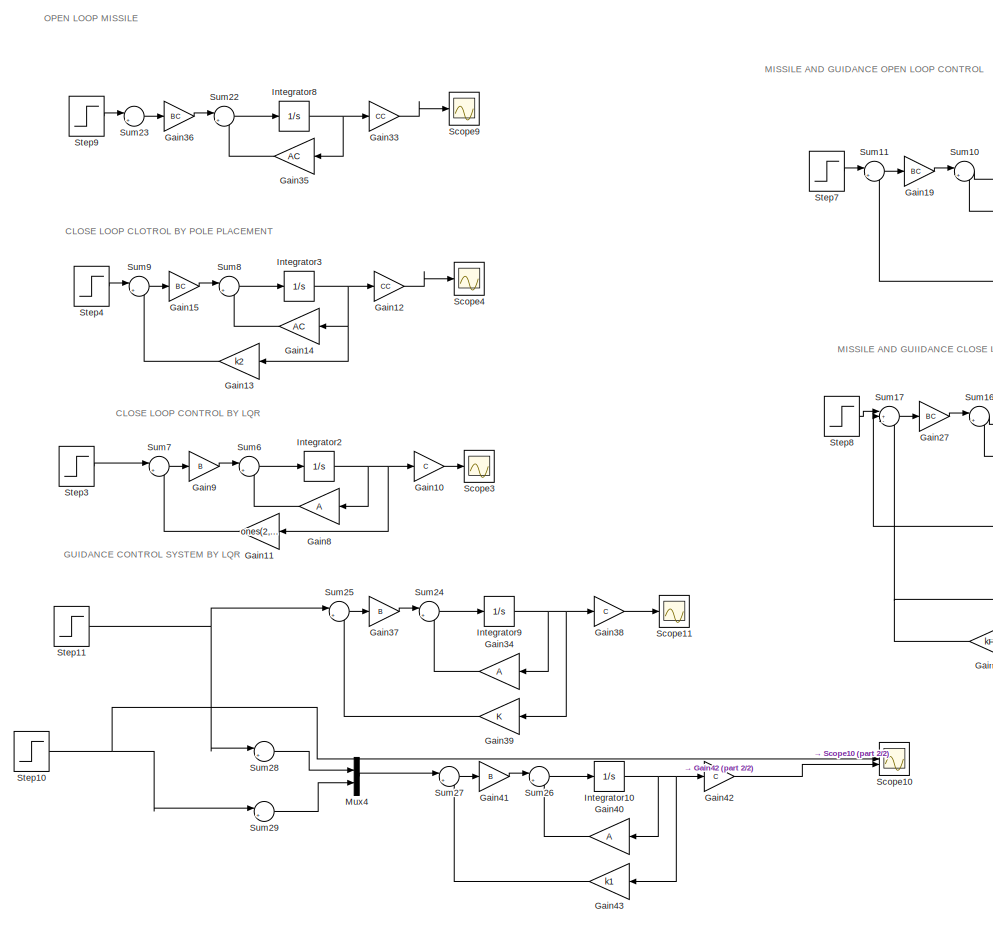
[diagram: root canvas - part 1/2, left side, full height]
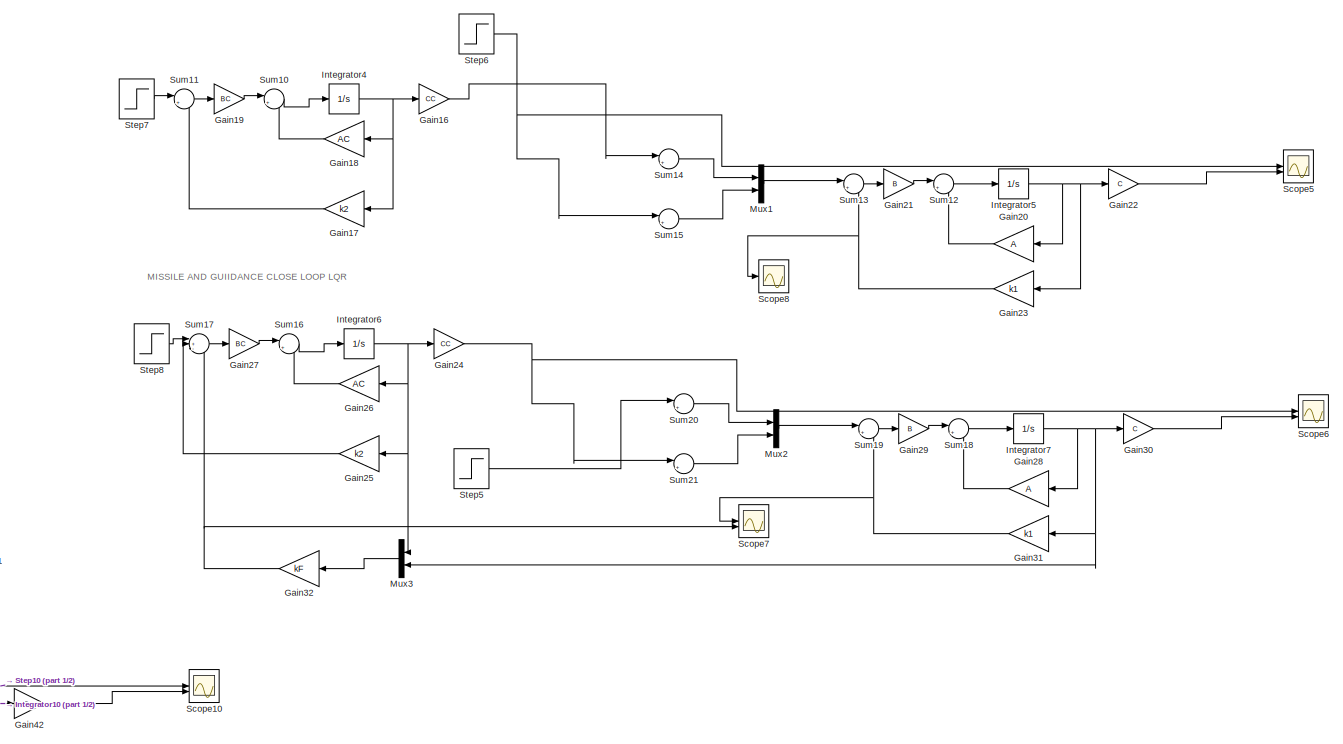
[diagram: root canvas - part 2/2, right side, full height]
MODEL slx_5d6a3b99c78d
KIND model
CONFIG AbsTol = 1e-6
CONFIG EnableMultiTasking = off
CONFIG FixedStep = auto
CONFIG MaxStep = 0.01
CONFIG MinStep = 0.001
CONFIG RelTol = 1e-6
CONFIG SampleTimeConstraint = Unconstrained
CONFIG SolverName = VariableStepAuto
CONFIG StartTime = 0.0
CONFIG StopTime = 20
BLOCK [Gain] Gain10
  Gain = C
  Multiplication = Matrix(K*u)
BLOCK [Gain] Gain11
  Gain = ones(2,5)
  Multiplication = Matrix(K*u)
  NameLocation = top
BLOCK [Gain] Gain12
  Gain = CC
  Multiplication = Matrix(K*u)
BLOCK [Gain] Gain13
  Gain = k2
  Multiplication = Matrix(K*u)
  NameLocation = top
BLOCK [Gain] Gain14
  Gain = AC
  Multiplication = Matrix(K*u)
  NameLocation = top
BLOCK [Gain] Gain15
  Gain = BC
  Multiplication = Matrix(K*u)
BLOCK [Gain] Gain16
  Gain = CC
  Multiplication = Matrix(K*u)
BLOCK [Gain] Gain17
  Gain = k2
  Multiplication = Matrix(K*u)
  NameLocation = top
BLOCK [Gain] Gain18
  Gain = AC
  Multiplication = Matrix(K*u)
  NameLocation = top
BLOCK [Gain] Gain19
  Gain = BC
  Multiplication = Matrix(K*u)
BLOCK [Gain] Gain20
  Gain = A
  Multiplication = Matrix(K*u)
  NameLocation = top
BLOCK [Gain] Gain21
  Gain = B
  Multiplication = Matrix(K*u)
BLOCK [Gain] Gain22
  Gain = C
  Multiplication = Matrix(K*u)
BLOCK [Gain] Gain23
  Gain = k1
  Multiplication = Matrix(K*u)
  NameLocation = top
BLOCK [Gain] Gain24
  Gain = CC
  Multiplication = Matrix(K*u)
BLOCK [Gain] Gain25
  Gain = k2
  Multiplication = Matrix(K*u)
  NameLocation = top
BLOCK [Gain] Gain26
  Gain = AC
  Multiplication = Matrix(K*u)
  NameLocation = top
BLOCK [Gain] Gain27
  Gain = BC
  Multiplication = Matrix(K*u)
BLOCK [Gain] Gain28
  Gain = A
  Multiplication = Matrix(K*u)
  NameLocation = top
BLOCK [Gain] Gain29
  Gain = B
  Multiplication = Matrix(K*u)
BLOCK [Gain] Gain30
  Gain = C
  Multiplication = Matrix(K*u)
BLOCK [Gain] Gain31
  Gain = k1
  Multiplication = Matrix(K*u)
  NameLocation = top
BLOCK [Gain] Gain32
  Gain = kF
  Multiplication = Matrix(K*u)
  NameLocation = top
BLOCK [Gain] Gain33
  Gain = CC
  Multiplication = Matrix(K*u)
BLOCK [Gain] Gain34
  Gain = A
  Multiplication = Matrix(K*u)
  NameLocation = top
BLOCK [Gain] Gain35
  Gain = AC
  Multiplication = Matrix(K*u)
  NameLocation = top
BLOCK [Gain] Gain36
  Gain = BC
  Multiplication = Matrix(K*u)
BLOCK [Gain] Gain37
  Gain = B
  Multiplication = Matrix(K*u)
BLOCK [Gain] Gain38
  Gain = C
  Multiplication = Matrix(K*u)
BLOCK [Gain] Gain39
  Gain = K
  Multiplication = Matrix(K*u)
  NameLocation = top
BLOCK [Gain] Gain40
  Gain = A
  Multiplication = Matrix(K*u)
  NameLocation = top
BLOCK [Gain] Gain41
  Gain = B
  Multiplication = Matrix(K*u)
BLOCK [Gain] Gain42
  Gain = C
  Multiplication = Matrix(K*u)
BLOCK [Gain] Gain43
  Gain = k1
  Multiplication = Matrix(K*u)
  NameLocation = top
BLOCK [Gain] Gain8
  Gain = A
  Multiplication = Matrix(K*u)
  NameLocation = top
BLOCK [Gain] Gain9
  Gain = B
  Multiplication = Matrix(K*u)
BLOCK [Integrator] Integrator10
BLOCK [Integrator] Integrator2
BLOCK [Integrator] Integrator3
BLOCK [Integrator] Integrator4
BLOCK [Integrator] Integrator5
BLOCK [Integrator] Integrator6
BLOCK [Integrator] Integrator7
BLOCK [Integrator] Integrator8
BLOCK [Integrator] Integrator9
BLOCK [Mux] Mux1
  DisplayOption = bar
  Inputs = 2
BLOCK [Mux] Mux2
  DisplayOption = bar
  Inputs = 2
BLOCK [Mux] Mux3
  DisplayOption = bar
  Inputs = 2
BLOCK [Mux] Mux4
  DisplayOption = bar
  Inputs = 2
BLOCK [Scope] Scope10
  Floating = off
  NumInputPorts = 2
  ScopeSpecificationString = Simulink.scopes.TimeScopeBlockCfg('CurrentConfiguration', extmgr.ConfigurationSet(extmgr.Configuration('Core','General UI',true,'FigureColor',[1 1 1]),extmgr.Configuration('Core','Source UI',true),extmgr.Configuration('Sources','WiredSimulink',true,'DataLoggingVariableName','ScopeData7'),extmgr.Configuration('Visuals','Time Domain',true,'SerializedDisplays',{struct('MinYLimReal','-2.83727','MaxYLi...<+1851ch>
BLOCK [Scope] Scope11
  Floating = off
  NumInputPorts = 1
  ScopeSpecificationString = Simulink.scopes.TimeScopeBlockCfg('CurrentConfiguration', extmgr.ConfigurationSet(extmgr.Configuration('Core','General UI',true,'FigureColor',[1 1 1]),extmgr.Configuration('Core','Source UI',true),extmgr.Configuration('Sources','WiredSimulink',true,'DataLoggingVariableName','ScopeData8'),extmgr.Configuration('Visuals','Time Domain',true,'SerializedDisplays',{struct('MinYLimReal','-19.6431','MaxYLi...<+1774ch>
BLOCK [Scope] Scope3
  Floating = off
  NumInputPorts = 1
  ScopeSpecificationString = Simulink.scopes.TimeScopeBlockCfg('CurrentConfiguration', extmgr.ConfigurationSet(extmgr.Configuration('Core','General UI',true,'FigureColor',[1 1 1]),extmgr.Configuration('Core','Source UI',true),extmgr.Configuration('Sources','WiredSimulink',true),extmgr.Configuration('Visuals','Time Domain',true,'SerializedDisplays',{struct('MinYLimReal','-0.46475','MaxYLimReal','1.16243','YLabelReal','','MinYL...<+1731ch>
BLOCK [Scope] Scope4
  Floating = off
  NumInputPorts = 2
  ScopeSpecificationString = Simulink.scopes.TimeScopeBlockCfg('CurrentConfiguration', extmgr.ConfigurationSet(extmgr.Configuration('Core','General UI',true,'FigureColor',[1 1 1]),extmgr.Configuration('Core','Source UI',true),extmgr.Configuration('Sources','WiredSimulink',true,'DataLoggingVariableName','ScopeData1'),extmgr.Configuration('Visuals','Time Domain',true,'SerializedDisplays',{struct('MinYLimReal','-148.67777','MaxY...<+1737ch>
BLOCK [Scope] Scope5
  Floating = off
  NumInputPorts = 2
  ScopeSpecificationString = Simulink.scopes.TimeScopeBlockCfg('CurrentConfiguration', extmgr.ConfigurationSet(extmgr.Configuration('Core','General UI',true,'FigureColor',[1 1 1]),extmgr.Configuration('Core','Source UI',true),extmgr.Configuration('Sources','WiredSimulink',true,'DataLoggingVariableName','ScopeData2'),extmgr.Configuration('Visuals','Time Domain',true,'SerializedDisplays',{struct('MinYLimReal','-956.52016','MaxY...<+1744ch>
BLOCK [Scope] Scope6
  Floating = off
  NumInputPorts = 2
  ScopeSpecificationString = Simulink.scopes.TimeScopeBlockCfg('CurrentConfiguration', extmgr.ConfigurationSet(extmgr.Configuration('Core','General UI',true,'FigureColor',[1 1 1]),extmgr.Configuration('Core','Source UI',true),extmgr.Configuration('Sources','WiredSimulink',true,'DataLoggingVariableName','ScopeData3'),extmgr.Configuration('Visuals','Time Domain',true,'SerializedDisplays',{struct('MinYLimReal','-0.80664','MaxYLi...<+1726ch>
BLOCK [Scope] Scope7
  Floating = off
  NumInputPorts = 2
  ScopeSpecificationString = Simulink.scopes.TimeScopeBlockCfg('CurrentConfiguration', extmgr.ConfigurationSet(extmgr.Configuration('Core','General UI',true,'FigureColor',[1 1 1]),extmgr.Configuration('Core','Source UI',true),extmgr.Configuration('Sources','WiredSimulink',true,'DataLoggingVariableName','ScopeData4'),extmgr.Configuration('Visuals','Time Domain',true,'SerializedDisplays',{struct('MinYLimReal','-0.20691','MaxYLi...<+1726ch>
BLOCK [Scope] Scope8
  Floating = off
  NumInputPorts = 2
  ScopeSpecificationString = Simulink.scopes.TimeScopeBlockCfg('CurrentConfiguration', extmgr.ConfigurationSet(extmgr.Configuration('Core','General UI',true,'FigureColor',[1 1 1]),extmgr.Configuration('Core','Source UI',true),extmgr.Configuration('Sources','WiredSimulink',true,'DataLoggingVariableName','ScopeData5'),extmgr.Configuration('Visuals','Time Domain',true,'SerializedDisplays',{struct('MinYLimReal','-242.31295','MaxY...<+1744ch>
BLOCK [Scope] Scope9
  Floating = off
  NumInputPorts = 2
  ScopeSpecificationString = Simulink.scopes.TimeScopeBlockCfg('CurrentConfiguration', extmgr.ConfigurationSet(extmgr.Configuration('Core','General UI',true,'FigureColor',[1 1 1]),extmgr.Configuration('Core','Source UI',true),extmgr.Configuration('Sources','WiredSimulink',true,'DataLoggingVariableName','ScopeData6'),extmgr.Configuration('Visuals','Time Domain',true,'SerializedDisplays',{struct('MinYLimReal','-1044854690169416...<+4107ch>
BLOCK [Step] Step10
  SampleTime = 0
BLOCK [Step] Step11
  SampleTime = 0
BLOCK [Step] Step3
  SampleTime = 0
BLOCK [Step] Step4
  SampleTime = 0
BLOCK [Step] Step5
  SampleTime = 0
BLOCK [Step] Step6
  SampleTime = 0
BLOCK [Step] Step7
  SampleTime = 0
BLOCK [Step] Step8
  SampleTime = 0
BLOCK [Step] Step9
  SampleTime = 0
BLOCK [Sum] Sum10
  Inputs = |++
BLOCK [Sum] Sum11
  Inputs = |+-
BLOCK [Sum] Sum12
  Inputs = |++
BLOCK [Sum] Sum13
  Inputs = |+-
BLOCK [Sum] Sum14
  Inputs = |+-
BLOCK [Sum] Sum15
  Inputs = |+-
BLOCK [Sum] Sum16
  Inputs = |++
BLOCK [Sum] Sum17
  Inputs = |+--
BLOCK [Sum] Sum18
  Inputs = |++
BLOCK [Sum] Sum19
  Inputs = |+-
BLOCK [Sum] Sum20
  Inputs = |+-
BLOCK [Sum] Sum21
  Inputs = |+-
BLOCK [Sum] Sum22
  Inputs = |++
BLOCK [Sum] Sum23
  Inputs = |+-
BLOCK [Sum] Sum24
  Inputs = |++
BLOCK [Sum] Sum25
  Inputs = |+-
BLOCK [Sum] Sum26
  Inputs = |++
BLOCK [Sum] Sum27
  Inputs = |+-
BLOCK [Sum] Sum28
  Inputs = |+-
BLOCK [Sum] Sum29
  Inputs = |+-
BLOCK [Sum] Sum6
  Inputs = |++
BLOCK [Sum] Sum7
  Inputs = |+-
BLOCK [Sum] Sum8
  Inputs = |++
BLOCK [Sum] Sum9
  Inputs = |+-
ANNOTATION (root): CLOSE LOOP CLOTROL BY POLE PLACEMENT
ANNOTATION (root): CLOSE LOOP CONTROL BY LQR
ANNOTATION (root): GUIDANCE CONTROL SYSTEM BY LQR
ANNOTATION (root): MISSILE AND GUIIDANCE CLOSE LOOP LQR
ANNOTATION (root): MISSILE AND GUIDANCE OPEN LOOP CONTROL
ANNOTATION (root): OPEN LOOP MISSILE
LINE Gain10:1 -> Scope3:1
LINE Gain11:1 -> Sum7:2
LINE Gain12:1 -> Scope4:1
LINE Gain13:1 -> Sum9:2
LINE Gain14:1 -> Sum8:2
LINE Gain15:1 -> Sum8:1
LINE Gain16:1 -> Sum14:1
LINE Gain17:1 -> Sum11:2
LINE Gain18:1 -> Sum10:2
LINE Gain19:1 -> Sum10:1
LINE Gain20:1 -> Sum12:2
LINE Gain21:1 -> Sum12:1
LINE Gain22:1 -> Scope5:2
NET Gain23:1 -> Scope8:1, Sum13:2
NET Gain24:1 -> Scope6:1, Sum21:1
LINE Gain25:1 -> Sum17:2
LINE Gain26:1 -> Sum16:2
LINE Gain27:1 -> Sum16:1
LINE Gain28:1 -> Sum18:2
LINE Gain29:1 -> Sum18:1
LINE Gain30:1 -> Scope6:2
NET Gain31:1 -> Scope7:1, Sum19:2
NET Gain32:1 -> Scope7:2, Sum17:3
LINE Gain33:1 -> Scope9:1
LINE Gain34:1 -> Sum24:2
LINE Gain35:1 -> Sum22:2
LINE Gain36:1 -> Sum22:1
LINE Gain37:1 -> Sum24:1
LINE Gain38:1 -> Scope11:1
LINE Gain39:1 -> Sum25:2
LINE Gain40:1 -> Sum26:2
LINE Gain41:1 -> Sum26:1
LINE Gain42:1 -> Scope10:2
LINE Gain43:1 -> Sum27:2
LINE Gain8:1 -> Sum6:2
LINE Gain9:1 -> Sum6:1
NET Integrator10:1 -> Gain40:1, Gain42:1, Gain43:1
NET Integrator2:1 -> Gain10:1, Gain11:1, Gain8:1
NET Integrator3:1 -> Gain12:1, Gain13:1, Gain14:1
NET Integrator4:1 -> Gain16:1, Gain17:1, Gain18:1
NET Integrator5:1 -> Gain20:1, Gain22:1, Gain23:1
NET Integrator6:1 -> Gain24:1, Gain25:1, Gain26:1, Mux3:1
NET Integrator7:1 -> Gain28:1, Gain30:1, Gain31:1, Mux3:2
NET Integrator8:1 -> Gain33:1, Gain35:1
NET Integrator9:1 -> Gain34:1, Gain38:1, Gain39:1
LINE Mux1:1 -> Sum13:1
LINE Mux2:1 -> Sum19:1
LINE Mux3:1 -> Gain32:1
LINE Mux4:1 -> Sum27:1
NET Step10:1 -> Scope10:1, Sum29:1
NET Step11:1 -> Sum25:1, Sum28:1
LINE Step3:1 -> Sum7:1
LINE Step4:1 -> Sum9:1
LINE Step5:1 -> Sum20:1
NET Step6:1 -> Scope5:1, Sum15:1
LINE Step7:1 -> Sum11:1
LINE Step8:1 -> Sum17:1
LINE Step9:1 -> Sum23:1
LINE Sum10:1 -> Integrator4:1
LINE Sum11:1 -> Gain19:1
LINE Sum12:1 -> Integrator5:1
LINE Sum13:1 -> Gain21:1
LINE Sum14:1 -> Mux1:1
LINE Sum15:1 -> Mux1:2
LINE Sum16:1 -> Integrator6:1
LINE Sum17:1 -> Gain27:1
LINE Sum18:1 -> Integrator7:1
LINE Sum19:1 -> Gain29:1
LINE Sum20:1 -> Mux2:1
LINE Sum21:1 -> Mux2:2
LINE Sum22:1 -> Integrator8:1
LINE Sum23:1 -> Gain36:1
LINE Sum24:1 -> Integrator9:1
LINE Sum25:1 -> Gain37:1
LINE Sum26:1 -> Integrator10:1
LINE Sum27:1 -> Gain41:1
LINE Sum28:1 -> Mux4:1
LINE Sum29:1 -> Mux4:2
LINE Sum6:1 -> Integrator2:1
LINE Sum7:1 -> Gain9:1
LINE Sum8:1 -> Integrator3:1
LINE Sum9:1 -> Gain15:1
note: NET lines group one-source signal fan-out (src -> all destinations, sorted); 1:1 wires keep LINE
